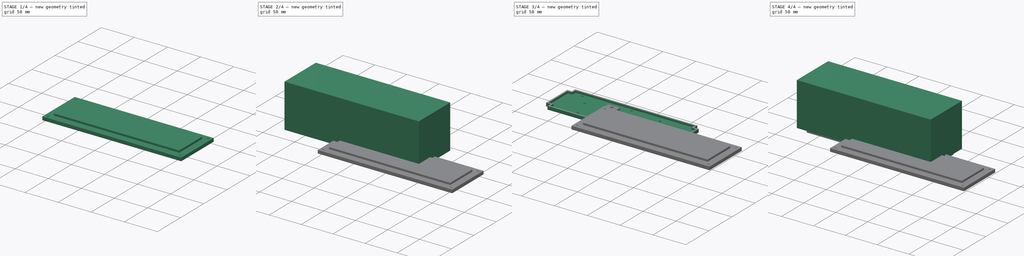
[diagram: build sequence overview — one tinted view per stage of 4, left to right]
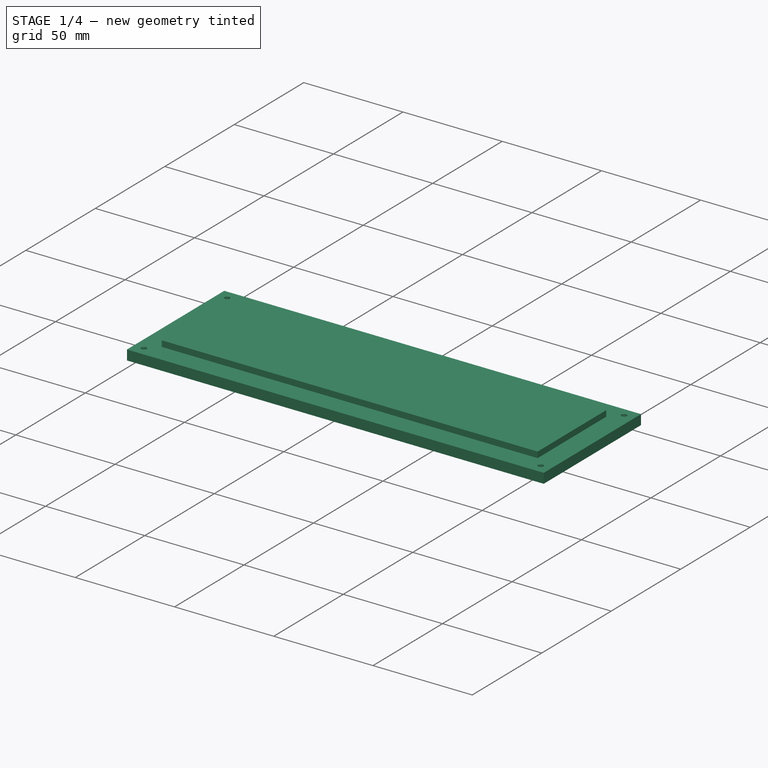
[diagram: stage 1 of 4 — iso view after this stage's code; geometry added in this stage tinted green]
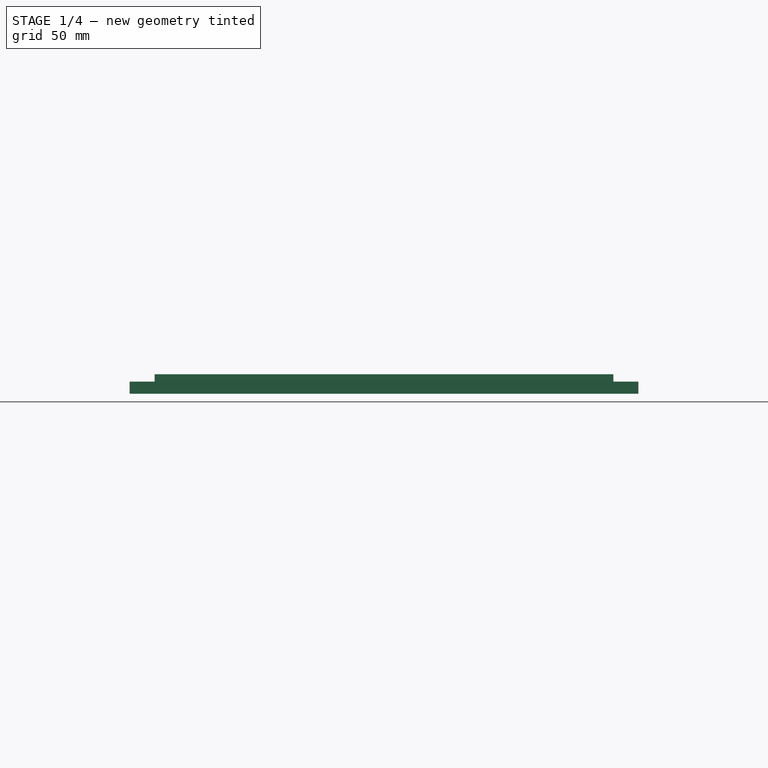
[diagram: stage 1 of 4 — front view after this stage's code; geometry added in this stage tinted green]
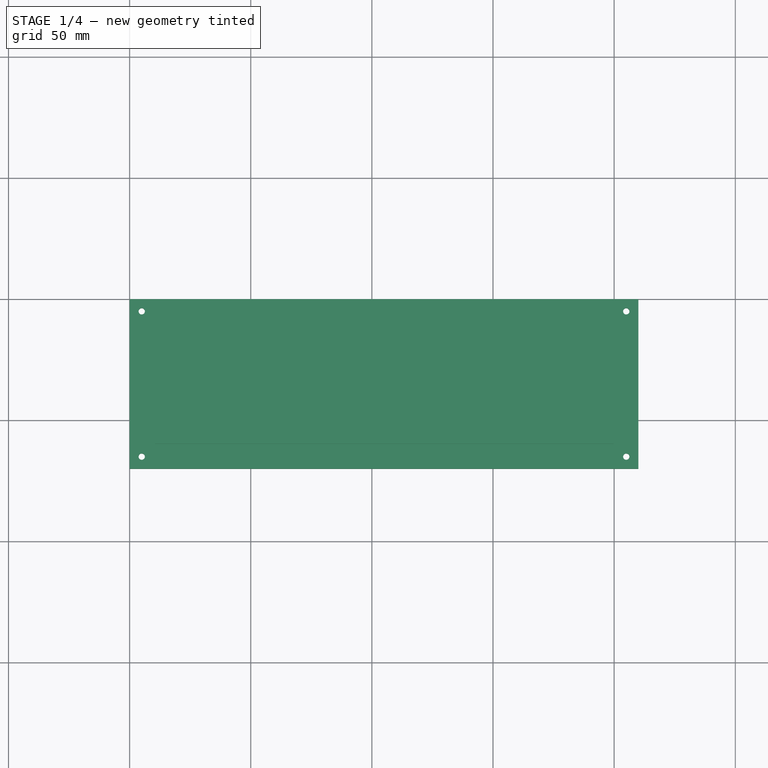
[diagram: stage 1 of 4 — top view after this stage's code; geometry added in this stage tinted green]
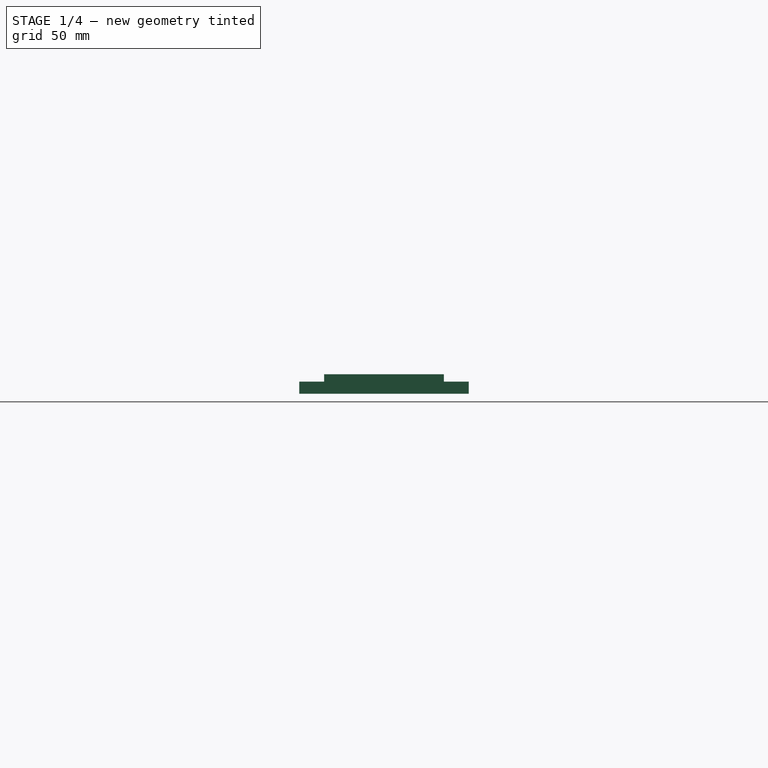
[diagram: stage 1 of 4 — right view after this stage's code; geometry added in this stage tinted green]
FCSTD DOCUMENT  (FreeCAD 0.20R29177 (Git))
Label: ElectronicAssembly_v3
License: All rights reserved
LicenseURL: http://en.wikipedia.org/wiki/All_rights_reserved
objects: Sketcher::SketchObject×12, PartDesign::Pocket×8, PartDesign::Pad×4, PartDesign::Body×4, App::Part×4, Part::Feature×1
note: 41 computed .brp shape members not serialized (recipe doc carries the construction recipe); baked Part::Feature solids carry a one-line shape summary decoded from their .brp

FEATURE [PartDesign::Body] Body003
  Group = -> [Sketch012,Pad003,Sketch013,Pocket005]
  Origin = -> Origin009
  Tip = -> Pocket005
FEATURE [App::Part] Part004  label="MotorControlConnector"
  Group = -> [Body003]
  Origin = -> Origin008
FEATURE [Sketcher::SketchObject] Sketch014
  FullyConstrained = true
  MapMode = 5
  Support = -> [XY_Plane011]
  sketch-geometry (4):
    g0: LineSegment StartX=0 StartY=0 StartZ=0 EndX=210 EndY=0 EndZ=0
    g1: LineSegment StartX=210 StartY=0 StartZ=0 EndX=210 EndY=-70 EndZ=0
    g2: LineSegment StartX=210 StartY=-70 StartZ=0 EndX=0 EndY=-70 EndZ=0
    g3: LineSegment StartX=0 StartY=-70 StartZ=0 EndX=0 EndY=0 EndZ=0
  constraints (11):
    c: Coincident(g0,g1)
    c: Coincident(g1,g2)
    c: Coincident(g2,g3)
    c: Coincident(g3,g0)
    c: Horizontal(g0)
    c: Horizontal(g2)
    c: Vertical(g1)
    c: Vertical(g3)
    c: DistanceX(g0,g0) = 210
    c: DistanceY(g3,g3) = 70
    c: Coincident(g-1,g0)
FEATURE [PartDesign::Pad] Pad004
  Direction = (0,0,1)
  Length = 8
  Length2 = 10
  Profile = -> Sketch014
  ReferenceAxis = -> Sketch014 [N_Axis]
  Type = 0
FEATURE [Sketcher::SketchObject] Sketch015
  ExternalGeometry = -> [Pad004]
  FullyConstrained = true
  MapMode = 5
  Placement = pos=(0,0,8) rot=(0,0,1;0rad)
  Support = -> [Pad004]
  sketch-geometry (8):
    g0: LineSegment StartX=0 StartY=0 StartZ=0 EndX=210 EndY=0 EndZ=0
    g1: LineSegment StartX=210 StartY=0 StartZ=0 EndX=210 EndY=-70 EndZ=0
    g2: LineSegment StartX=210 StartY=-70 StartZ=0 EndX=0 EndY=-70 EndZ=0
    g3: LineSegment StartX=0 StartY=-70 StartZ=0 EndX=0 EndY=0 EndZ=0
    g4: LineSegment StartX=199.7 StartY=-59.7 StartZ=0 EndX=10.3 EndY=-59.7 EndZ=0
    g5: LineSegment StartX=10.3 StartY=-59.7 StartZ=0 EndX=10.3 EndY=-10.3 EndZ=0
    g6: LineSegment StartX=10.3 StartY=-10.3 StartZ=0 EndX=199.7 EndY=-10.3 EndZ=0
    g7: LineSegment StartX=199.7 StartY=-10.3 StartZ=0 EndX=199.7 EndY=-59.7 EndZ=0
  constraints (21):
    c: Coincident(g1,g2)
    c: Coincident(g0,g1)
    c: Vertical(g1)
    c: Horizontal(g0)
    c: Coincident(g0,g3)
    c: Coincident(g3,g2)
    c: DistanceX(g2,g4) = 10.3
    c: Coincident(g5,g4)
    c: Vertical(g5)
    c: Coincident(g6,g5)
    c: DistanceX(g6,g0) = 10.3
    c: Coincident(g7,g6)
    c: Vertical(g7)
    c: Coincident(g4,g7)
    c: DistanceY(g5,g0) = 10.3
    c: Horizontal(g6)
    c: Horizontal(g4)
    c: DistanceY(g2,g4) = 10.3
    c: Coincident(g-3,g1)
    c: Coincident(g2,g-3)
    c: Coincident(g0,g-1)
FEATURE [PartDesign::Pocket] Pocket006
  BaseFeature = -> Pad004
  Direction = (0,0,-1)
  Length = 3
  Length2 = 5
  Profile = -> Sketch015
  ReferenceAxis = -> Sketch015 [N_Axis]
  Type = 0
FEATURE [Sketcher::SketchObject] Sketch016
  ExternalGeometry = -> [Pocket006]
  FullyConstrained = true
  MapMode = 5
  Placement = pos=(0,0,8) rot=(0,0,1;0rad)
  Support = -> [Pocket006]
  sketch-geometry (4):
    g0: Circle CenterX=5 CenterY=-5 CenterZ=0 NormalX=0 NormalY=0 NormalZ=1 AngleXU=0 Radius=1.3
    g1: Circle CenterX=205 CenterY=-5 CenterZ=0 NormalX=0 NormalY=0 NormalZ=1 AngleXU=0 Radius=1.3
    g2: Circle CenterX=205 CenterY=-65 CenterZ=0 NormalX=0 NormalY=0 NormalZ=1 AngleXU=0 Radius=1.3
    g3: Circle CenterX=5 CenterY=-65 CenterZ=0 NormalX=0 NormalY=0 NormalZ=1 AngleXU=0 Radius=1.3
  constraints (12):
    c: Vertical(g0,g3)
    c: Horizontal(g1,g0)
    c: Vertical(g2,g1)
    c: Diameter(g0) = 2.6
    c: DistanceY(g0,g-1) = 5
    c: DistanceY(g-3,g3) = 5
    c: Diameter(g3) = 2.6
    c: Diameter(g2) = 2.6
    c: Diameter(g1) = 2.6
    c: Horizontal(g2,g3)
    c: DistanceX(g-4,g0) = 5
    c: DistanceX(g1,g-5) = 5
FEATURE [PartDesign::Pocket] Pocket007
  BaseFeature = -> Pocket006
  Direction = (0,0,-1)
  Length = 25
  Length2 = 5
  Profile = -> Sketch016
  ReferenceAxis = -> Sketch016 [N_Axis]
  Type = 0
FEATURE [PartDesign::Body] Body004  label="EnclosureBody"
  Group = -> [Sketch014,Pad004,Sketch015,Pocket006,Sketch016,Pocket007]
  Origin = -> Origin011
  Tip = -> Pocket007
FEATURE [App::Part] Part005  label="ElectronicsEnclosureLid"
  Group = -> [Body004]
  Origin = -> Origin010
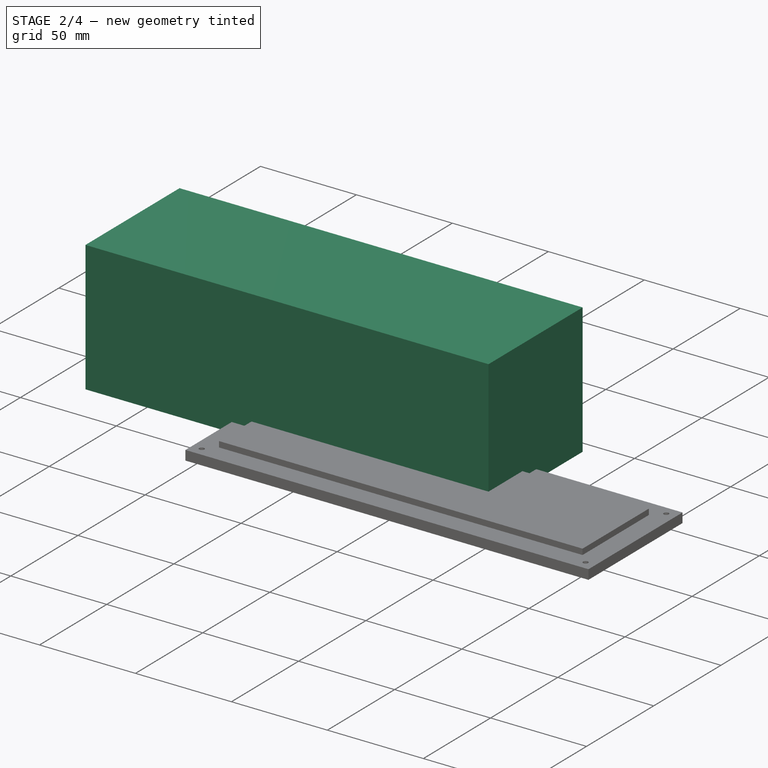
[diagram: stage 2 of 4 — iso view after this stage's code; geometry added in this stage tinted green]
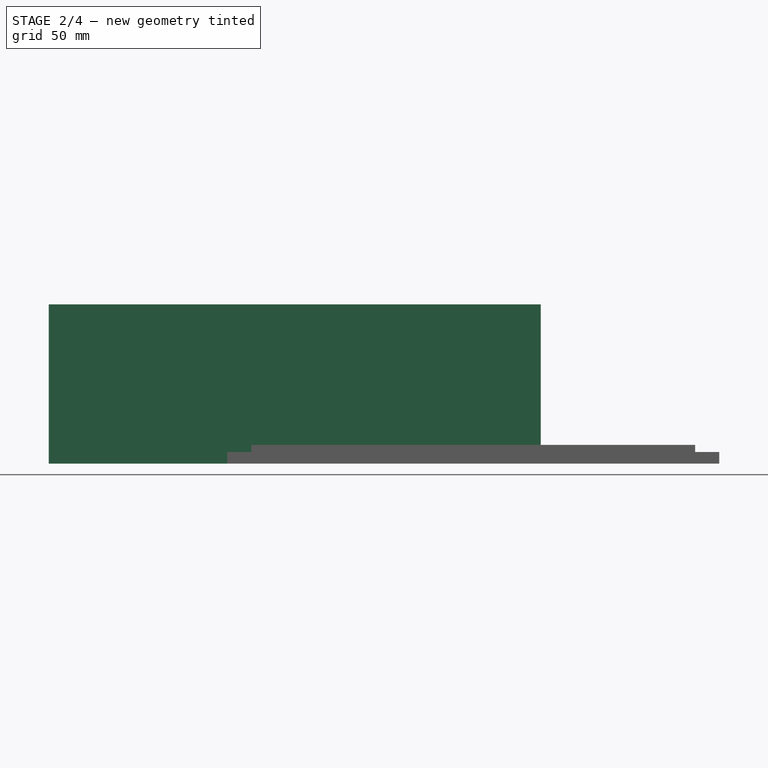
[diagram: stage 2 of 4 — front view after this stage's code; geometry added in this stage tinted green]
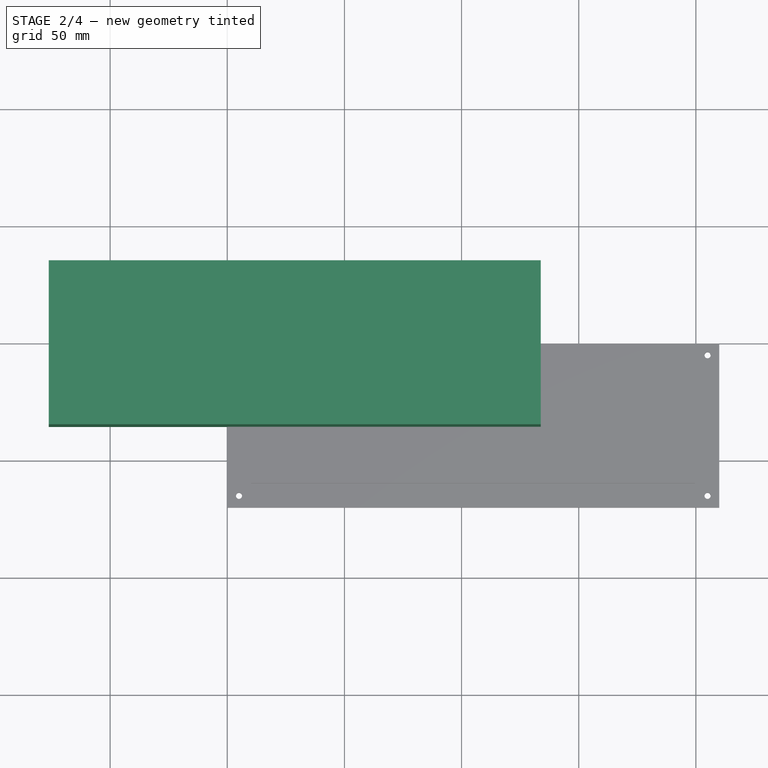
[diagram: stage 2 of 4 — top view after this stage's code; geometry added in this stage tinted green]
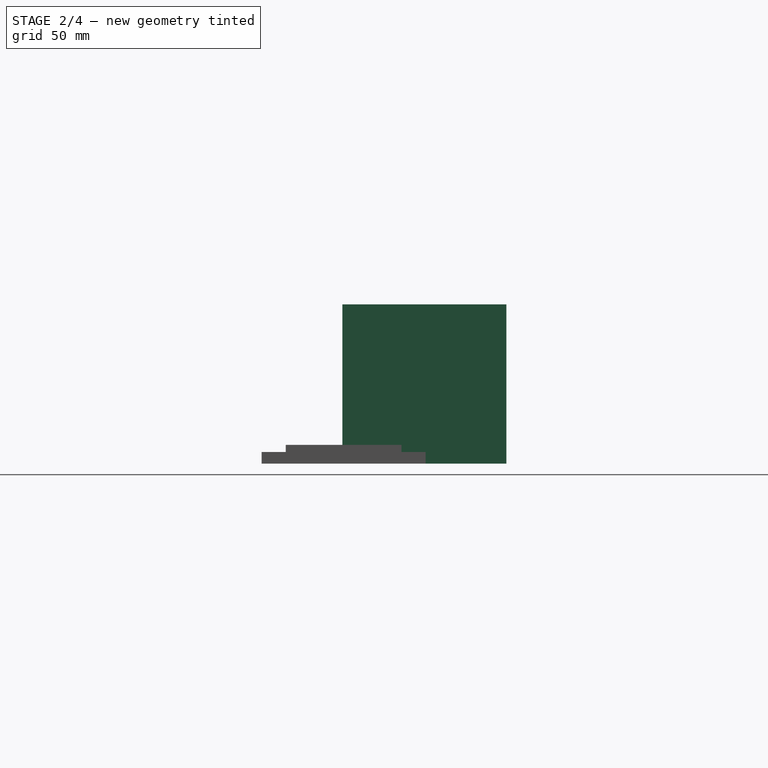
[diagram: stage 2 of 4 — right view after this stage's code; geometry added in this stage tinted green]
FEATURE [Sketcher::SketchObject] Sketch006
  FullyConstrained = false
  MapMode = 5
  Support = -> [XY_Plane006]
  sketch-geometry (4):
    g0: LineSegment StartX=-76.2213 StartY=34.4613 StartZ=0 EndX=133.779 EndY=34.4613 EndZ=0
    g1: LineSegment StartX=133.779 StartY=34.4613 StartZ=0 EndX=133.779 EndY=-35.5387 EndZ=0
    g2: LineSegment StartX=133.779 StartY=-35.5387 StartZ=0 EndX=-76.2213 EndY=-35.5387 EndZ=0
    g3: LineSegment StartX=-76.2213 StartY=-35.5387 StartZ=0 EndX=-76.2213 EndY=34.4613 EndZ=0
  constraints (10):
    c: Coincident(g0,g1)
    c: Coincident(g1,g2)
    c: Coincident(g2,g3)
    c: Coincident(g3,g0)
    c: Horizontal(g0)
    c: Horizontal(g2)
    c: Vertical(g1)
    c: Vertical(g3)
    c: DistanceX(g2,g2) = 210
    c: DistanceY(g1,g1) = 70
FEATURE [PartDesign::Pad] Pad002
  Direction = (0,0,1)
  Length = 68
  Length2 = 100
  Profile = -> Sketch006
  Type = 0
FEATURE [PartDesign::Body] Body  label="MountPadBody"
  Group = -> [Sketch009,Pad,Sketch010,Pocket003,Sketch011,Pocket004]
  Origin = -> Origin007
  Tip = -> Pocket004
FEATURE [App::Part] Part  label="MountPad"
  Group = -> [Body]
  Origin = -> Origin
FEATURE [Sketcher::SketchObject] Sketch012
  FullyConstrained = true
  MapMode = 5
  Support = -> [XY_Plane009]
  sketch-geometry (11):
    g0: LineSegment StartX=0 StartY=0 StartZ=0 EndX=18 EndY=0 EndZ=0
    g1: LineSegment StartX=18 StartY=0 StartZ=0 EndX=18 EndY=10 EndZ=0
    g2: LineSegment StartX=18 StartY=10 StartZ=0 EndX=0 EndY=10 EndZ=0
    g3: LineSegment StartX=0 StartY=10 StartZ=0 EndX=0 EndY=0 EndZ=0
    g4: Circle CenterX=3 CenterY=5 CenterZ=0 NormalX=0 NormalY=0 NormalZ=1 AngleXU=0 Radius=0.75
    g5: Circle CenterX=9 CenterY=5 CenterZ=0 NormalX=0 NormalY=0 NormalZ=1 AngleXU=0 Radius=2.5
    g6: Circle CenterX=15 CenterY=5 CenterZ=0 NormalX=0 NormalY=0 NormalZ=1 AngleXU=0 Radius=0.75
    g7: LineSegment StartX=3 StartY=5 StartZ=0 EndX=3 EndY=10 EndZ=0
    g8: LineSegment StartX=3 StartY=5 StartZ=0 EndX=3 EndY=0 EndZ=0
    g9: LineSegment StartX=0 StartY=5 StartZ=0 EndX=3 EndY=5 EndZ=0
    g10: LineSegment StartX=15 StartY=5 StartZ=0 EndX=18 EndY=5 EndZ=0
  constraints (31):
    c: Coincident(g0,g1)
    c: Coincident(g1,g2)
    c: Coincident(g2,g3)
    c: Coincident(g3,g0)
    c: Horizontal(g0)
    c: Horizontal(g2)
    c: Vertical(g1)
    c: Vertical(g3)
    c: Coincident(g0,g-1)
    c: DistanceX(g2,g2) = 18
    c: DistanceY(g3,g3) = 10
    c: Diameter(g6) = 1.5
    c: Diameter(g4) = 1.5
    c: Coincident(g7,g4)
    c: PointOnObject(g7,g2)
    c: Vertical(g7)
    c: Coincident(g8,g4)
    c: PointOnObject(g8,g0)
    c: Vertical(g8)
    c: Equal(g8,g7)
    c: Horizontal(g4,g5)
    c: Horizontal(g6,g5)
    c: PointOnObject(g9,g3)
    c: Coincident(g9,g4)
    c: Horizontal(g9)
    c: Coincident(g10,g6)
    c: PointOnObject(g10,g1)
    c: Equal(g9,g10)
    c: Symmetric(g9,g10,g5)
    c: Diameter(g5) = 5
    c: DistanceX(g4,g6) = 12
FEATURE [PartDesign::Pad] Pad003
  Direction = (0,0,1)
  Length = 4
  Length2 = 10
  Profile = -> Sketch012
  ReferenceAxis = -> Sketch012 [N_Axis]
  Type = 0
FEATURE [Sketcher::SketchObject] Sketch013
  ExternalGeometry = -> [Pad003]
  FullyConstrained = true
  MapMode = 5
  Placement = pos=(0,0,0) rot=(1,0,0;3.14159rad)
  Support = -> [Pad003]
  sketch-geometry (6):
    g0: LineSegment StartX=5 StartY=0 StartZ=0 EndX=13 EndY=0 EndZ=0
    g1: LineSegment StartX=13 StartY=0 StartZ=0 EndX=13 EndY=-10 EndZ=0
    g2: LineSegment StartX=13 StartY=-10 StartZ=0 EndX=5 EndY=-10 EndZ=0
    g3: LineSegment StartX=5 StartY=-10 StartZ=0 EndX=5 EndY=0 EndZ=0
    g4: LineSegment StartX=0 StartY=0 StartZ=0 EndX=5 EndY=0 EndZ=0
    g5: LineSegment StartX=13 StartY=0 StartZ=0 EndX=18 EndY=0 EndZ=0
  constraints (16):
    c: Coincident(g0,g1)
    c: Coincident(g1,g2)
    c: Coincident(g2,g3)
    c: Coincident(g3,g0)
    c: Horizontal(g0)
    c: Horizontal(g2)
    c: Vertical(g1)
    c: Vertical(g3)
    c: PointOnObject(g0,g-1)
    c: PointOnObject(g1,g-3)
    c: DistanceX(g0,g0) = 8
    c: Coincident(g4,g-1)
    c: Coincident(g4,g0)
    c: Coincident(g5,g0)
    c: Coincident(g-4,g5)
    c: Equal(g4,g5)
FEATURE [PartDesign::Pocket] Pocket005
  BaseFeature = -> Pad003
  Direction = (0,0,1)
  Length = 4
  Length2 = 5
  Midplane = true
  Profile = -> Sketch013
  ReferenceAxis = -> Sketch013 [N_Axis]
  Type = 0
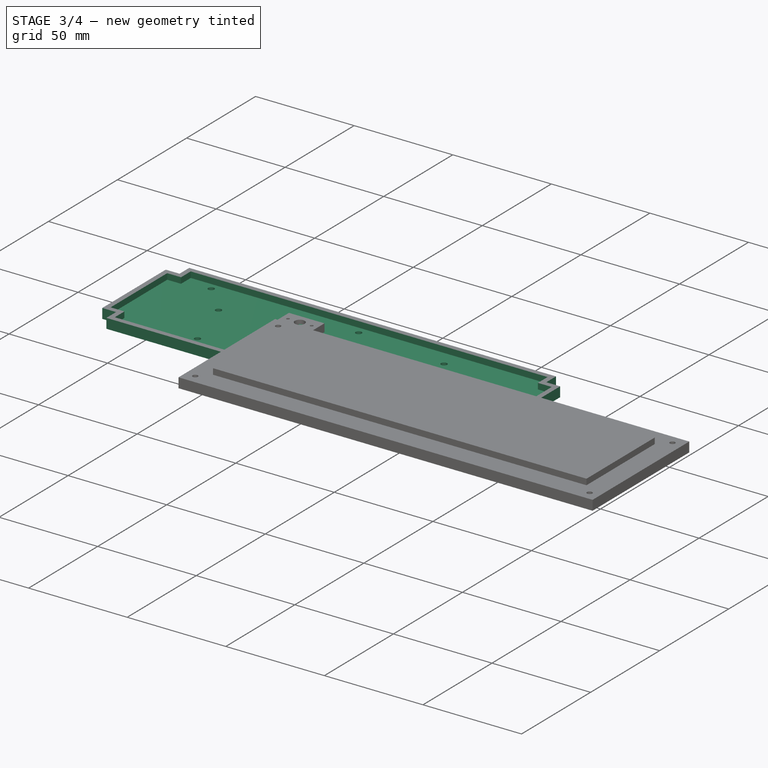
[diagram: stage 3 of 4 — iso view after this stage's code; geometry added in this stage tinted green]
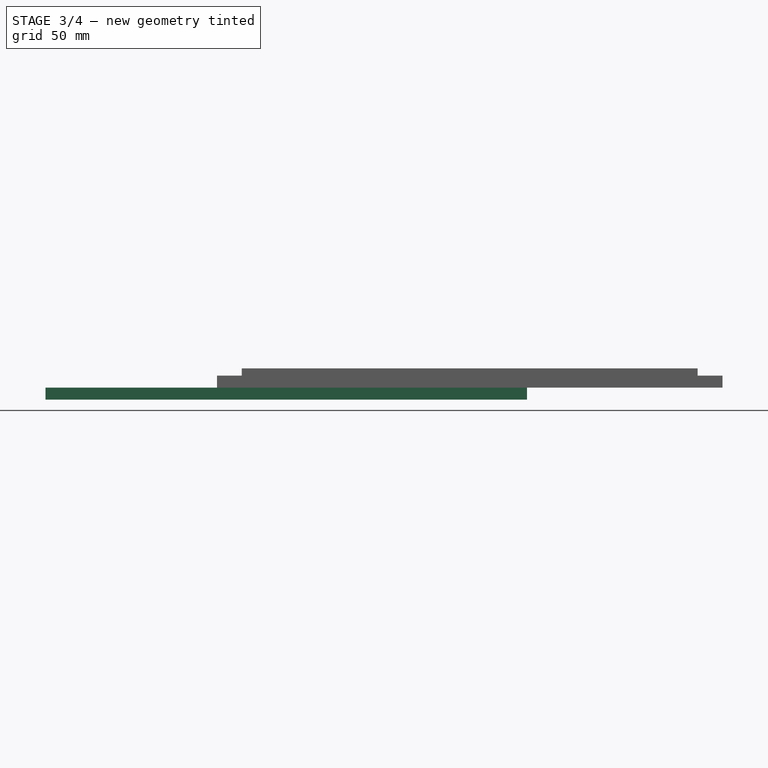
[diagram: stage 3 of 4 — front view after this stage's code; geometry added in this stage tinted green]
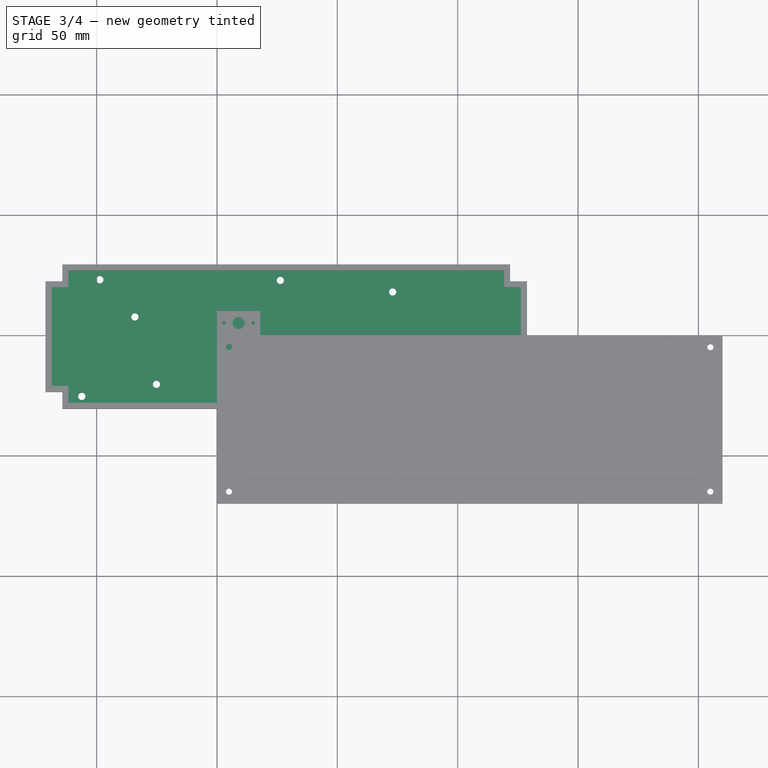
[diagram: stage 3 of 4 — top view after this stage's code; geometry added in this stage tinted green]
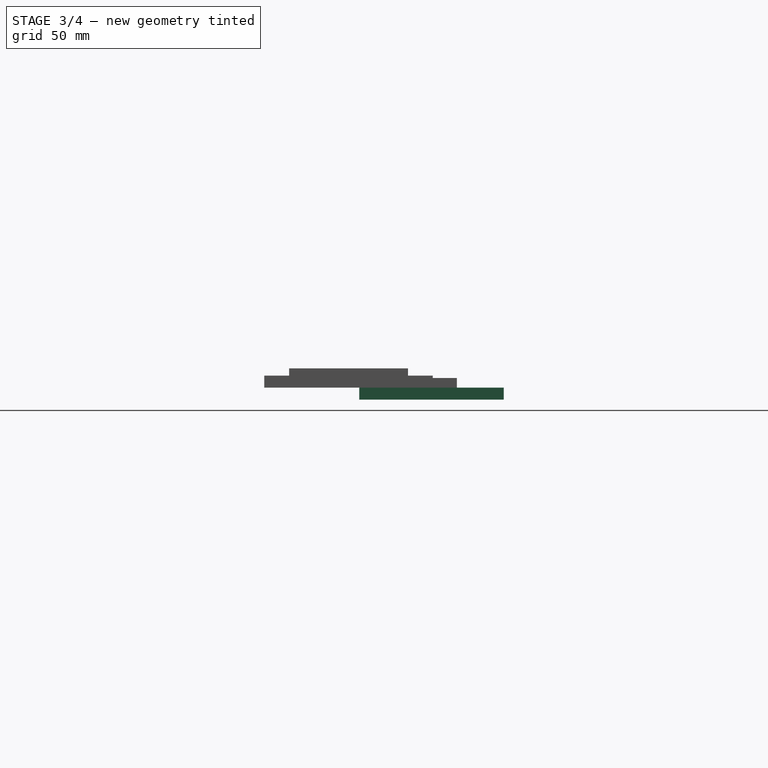
[diagram: stage 3 of 4 — right view after this stage's code; geometry added in this stage tinted green]
FEATURE [PartDesign::Body] Body002
  Group = -> [Sketch006,Pad002,Sketch007,Pocket,Sketch,Pocket001,Sketch008,Pocket002]
  Origin = -> Origin006
  Tip = -> Pocket002
FEATURE [App::Part] Part003  label="ElectronicsEnclosure"
  Group = -> [Body002]
  Origin = -> Origin005
FEATURE [Sketcher::SketchObject] Sketch009
  ExternalGeometry = -> [Pad002]
  FullyConstrained = true
  MapMode = 5
  Placement = pos=(0,0,0) rot=(1,0,0;3.14159rad)
  Support = -> [Pad002,XZ_Plane007]
  sketch-geometry (20):
    g0: LineSegment StartX=-64.2213 StartY=23.5387 StartZ=0 EndX=-71.2213 EndY=23.5387 EndZ=0
    g1: LineSegment StartX=-71.2213 StartY=23.5387 StartZ=0 EndX=-71.2213 EndY=30.5387 EndZ=0
    g2: LineSegment StartX=-71.2213 StartY=30.5387 StartZ=0 EndX=-64.2213 EndY=30.5387 EndZ=0
    g3: LineSegment StartX=-64.2213 StartY=30.5387 StartZ=0 EndX=-64.2213 EndY=23.5387 EndZ=0
    g4: LineSegment StartX=-71.2213 StartY=-22.4613 StartZ=0 EndX=-64.2213 EndY=-22.4613 EndZ=0
    g5: LineSegment StartX=-64.2213 StartY=-22.4613 StartZ=0 EndX=-64.2213 EndY=-29.4613 EndZ=0
    g6: LineSegment StartX=-64.2213 StartY=-29.4613 StartZ=0 EndX=-71.2213 EndY=-29.4613 EndZ=0
    g7: LineSegment StartX=-71.2213 StartY=-29.4613 StartZ=0 EndX=-71.2213 EndY=-22.4613 EndZ=0
    g8: LineSegment StartX=121.779 StartY=-29.4613 StartZ=0 EndX=128.779 EndY=-29.4613 EndZ=0
    g9: LineSegment StartX=128.779 StartY=-29.4613 StartZ=0 EndX=128.779 EndY=-22.4613 EndZ=0
    g10: LineSegment StartX=128.779 StartY=-22.4613 StartZ=0 EndX=121.779 EndY=-22.4613 EndZ=0
    g11: LineSegment StartX=121.779 StartY=-22.4613 StartZ=0 EndX=121.779 EndY=-29.4613 EndZ=0
    g12: LineSegment StartX=121.779 StartY=23.5387 StartZ=0 EndX=128.779 EndY=23.5387 EndZ=0
    g13: LineSegment StartX=128.779 StartY=23.5387 StartZ=0 EndX=128.779 EndY=30.5387 EndZ=0
    g14: LineSegment StartX=128.779 StartY=30.5387 StartZ=0 EndX=121.779 EndY=30.5387 EndZ=0
    g15: LineSegment StartX=121.779 StartY=30.5387 StartZ=0 EndX=121.779 EndY=23.5387 EndZ=0
    g16: LineSegment StartX=-64.2213 StartY=-29.4613 StartZ=0 EndX=121.779 EndY=-29.4613 EndZ=0
    g17: LineSegment StartX=128.779 StartY=-22.4613 StartZ=0 EndX=128.779 EndY=23.5387 EndZ=0
    g18: LineSegment StartX=121.779 StartY=30.5387 StartZ=0 EndX=-64.2213 EndY=30.5387 EndZ=0
    g19: LineSegment StartX=-71.2213 StartY=-22.4613 StartZ=0 EndX=-71.2213 EndY=23.5387 EndZ=0
  constraints (56):
    c: Coincident(g0,g1)
    c: Coincident(g1,g2)
    c: Coincident(g2,g3)
    c: Coincident(g3,g0)
    c: Horizontal(g0)
    c: Horizontal(g2)
    c: Vertical(g1)
    c: Vertical(g3)
    c: Coincident(g4,g5)
    c: Coincident(g5,g6)
    c: Coincident(g6,g7)
    c: Coincident(g7,g4)
    c: Horizontal(g4)
    c: Horizontal(g6)
    c: Vertical(g5)
    c: Vertical(g7)
    c: Coincident(g8,g9)
    c: Coincident(g9,g10)
    c: Coincident(g10,g11)
    c: Coincident(g11,g8)
    c: Horizontal(g8)
    c: Horizontal(g10)
    c: Vertical(g9)
    c: Vertical(g11)
    c: Coincident(g12,g13)
    c: Coincident(g13,g14)
    c: Coincident(g14,g15)
    c: Coincident(g15,g12)
    c: Horizontal(g12)
    c: Horizontal(g14)
    c: Vertical(g13)
    c: Vertical(g15)
    c: Vertical(g12,g10)
    c: Horizontal(g12,g0)
    c: Vertical(g0,g4)
    c: Horizontal(g4,g10)
    c: Coincident(g16,g5)
    c: Coincident(g16,g8)
    c: Horizontal(g16)
    c: Coincident(g17,g9)
    c: Coincident(g17,g12)
    c: Vertical(g17)
    c: Coincident(g18,g14)
    c: Coincident(g18,g2)
    c: Horizontal(g18)
    c: Equal(g2,g1)
    c: Equal(g4,g5)
    c: Coincident(g19,g4)
    c: Coincident(g19,g0)
    c: Vertical(g19)
    c: Equal(g15,g12)
    c: DistanceX(g-3,g1) = 5
    c: DistanceY(g1,g-3) = 5
    c: DistanceX(g13,g-4) = 5
    c: DistanceY(g-4,g8) = 5
    c: DistanceX(g4,g4) = 7
FEATURE [PartDesign::Pad] Pad  label="BasePad"
  Direction = (0,0,-1)
  Length = 5
  Length2 = 100
  Placement = pos=(0,0,0) rot=(1,0,0;3.14159rad)
  Profile = -> Sketch009
  Type = 0
FEATURE [Sketcher::SketchObject] Sketch010
  ExternalGeometry = -> [Pad,Sketch009]
  FullyConstrained = true
  MapMode = 5
  Support = -> [Pad]
  sketch-geometry (12):
    g0: LineSegment StartX=-61.7213 StartY=-28.0387 StartZ=0 EndX=-61.7213 EndY=-21.0387 EndZ=0
    g1: LineSegment StartX=-61.7213 StartY=-21.0387 StartZ=0 EndX=-68.7213 EndY=-21.0387 EndZ=0
    g2: LineSegment StartX=-68.7213 StartY=-21.0387 StartZ=0 EndX=-68.7213 EndY=19.9613 EndZ=0
    g3: LineSegment StartX=-68.7213 StartY=19.9613 StartZ=0 EndX=-61.7213 EndY=19.9613 EndZ=0
    g4: LineSegment StartX=-61.7213 StartY=19.9613 StartZ=0 EndX=-61.7213 EndY=26.9613 EndZ=0
    g5: LineSegment StartX=-61.7213 StartY=26.9613 StartZ=0 EndX=119.279 EndY=26.9613 EndZ=0
    g6: LineSegment StartX=119.279 StartY=26.9613 StartZ=0 EndX=119.279 EndY=19.9613 EndZ=0
    g7: LineSegment StartX=119.279 StartY=19.9613 StartZ=0 EndX=126.279 EndY=19.9613 EndZ=0
    g8: LineSegment StartX=126.279 StartY=19.9613 StartZ=0 EndX=126.279 EndY=-21.0387 EndZ=0
    g9: LineSegment StartX=126.279 StartY=-21.0387 StartZ=0 EndX=119.279 EndY=-21.0387 EndZ=0
    g10: LineSegment StartX=119.279 StartY=-21.0387 StartZ=0 EndX=119.279 EndY=-28.0387 EndZ=0
    g11: LineSegment StartX=119.279 StartY=-28.0387 StartZ=0 EndX=-61.7213 EndY=-28.0387 EndZ=0
  constraints (36):
    c: Vertical(g0)
    c: Coincident(g1,g0)
    c: Horizontal(g1)
    c: Coincident(g3,g2)
    c: Horizontal(g3)
    c: Vertical(g4)
    c: Horizontal(g5)
    c: Coincident(g6,g5)
    c: Vertical(g6)
    c: Coincident(g7,g6)
    c: Vertical(g8)
    c: Horizontal(g9)
    c: Vertical(g10)
    c: Coincident(g11,g10)
    c: Coincident(g11,g0)
    c: Horizontal(g11)
    c: Coincident(g10,g9)
    c: Coincident(g1,g2)
    c: Vertical(g2)
    c: Coincident(g4,g3)
    c: Coincident(g5,g4)
    c: DistanceX(g5,g-4) = 2.5
    c: DistanceY(g6,g-7) = 2.5
    c: Horizontal(g7)
    c: DistanceX(g8,g-8) = 2.5
    c: Coincident(g7,g8)
    c: Coincident(g8,g9)
    c: DistanceX(g-10,g2) = 2.5
    c: DistanceX(g-5,g4) = 2.5
    c: DistanceY(g3,g-10) = 2.5
    c: DistanceX(g10,g-14) = 2.5
    c: DistanceY(g-3,g9) = 2.5
    c: DistanceY(g-14,g10) = 2.5
    c: DistanceX(g-12,g0) = 2.5
    c: DistanceY(g-11,g1) = 2.5
    c: DistanceY(g4,g-5) = 2.5
FEATURE [PartDesign::Pocket] Pocket003
  BaseFeature = -> Pad
  Direction = (0,1e-16,-1)
  Length = 3
  Length2 = 100
  Placement = pos=(0,0,0) rot=(1,0,0;3.14159rad)
  Profile = -> Sketch010
  Type = 0
FEATURE [Part::Feature] Solid001  label="ArduinoMega_STEP_AP204"
  Placement = pos=(-10,-1,-7) rot=(0,0,1;0rad)
  shape: bbox 108 x 53.42 x 12.95 mm, 1851 faces (baked)
FEATURE [Sketcher::SketchObject] Sketch011
  FullyConstrained = false
  MapMode = 5
  Placement = pos=(0,1.1e-15,-3) rot=(0,0,1;0rad)
  Support = -> [Pocket003]
  sketch-geometry (22):
    g0: Circle CenterX=-48.6577 CenterY=23.1692 CenterZ=0 NormalX=0 NormalY=0 NormalZ=1 AngleXU=0 Radius=1.5
    g1: Circle CenterX=-34.1147 CenterY=7.66922 CenterZ=0 NormalX=0 NormalY=0 NormalZ=1 AngleXU=0 Radius=1.5
    g2: Circle CenterX=26.3423 CenterY=22.8681 CenterZ=0 NormalX=0 NormalY=0 NormalZ=1 AngleXU=0 Radius=1.5
    g3: Circle CenterX=-25.1577 CenterY=-20.3308 CenterZ=0 NormalX=0 NormalY=0 NormalZ=1 AngleXU=0 Radius=1.5
    g4: Circle CenterX=-56.1577 CenterY=-25.3308 CenterZ=0 NormalX=0 NormalY=0 NormalZ=1 AngleXU=0 Radius=1.5
    g5: Circle CenterX=26.3423 CenterY=-25.6319 CenterZ=0 NormalX=0 NormalY=0 NormalZ=1 AngleXU=0 Radius=1.5
    g6: Circle CenterX=52.5 CenterY=-11.6319 CenterZ=0 NormalX=0 NormalY=0 NormalZ=1 AngleXU=0 Radius=1.5
    g7: Circle CenterX=52.5 CenterY=-16.6319 CenterZ=0 NormalX=0 NormalY=0 NormalZ=1 AngleXU=0 Radius=1.5
    g8: LineSegment StartX=40 StartY=-1.63194 StartZ=0 EndX=65 EndY=-1.63194 EndZ=0
    g9: LineSegment StartX=65 StartY=-1.63194 StartZ=0 EndX=65 EndY=-26.6319 EndZ=0
    g10: LineSegment StartX=65 StartY=-26.6319 StartZ=0 EndX=40 EndY=-26.6319 EndZ=0
    g11: LineSegment StartX=40 StartY=-26.6319 StartZ=0 EndX=40 EndY=-1.63194 EndZ=0
    g12: LineSegment StartX=52.5 StartY=-11.6319 StartZ=0 EndX=52.5 EndY=-1.63194 EndZ=0
    g13: LineSegment StartX=52.5 StartY=-16.6319 StartZ=0 EndX=52.5 EndY=-26.6319 EndZ=0
    g14: LineSegment StartX=52.5 StartY=-11.6319 StartZ=0 EndX=40 EndY=-11.6319 EndZ=0
    g15: LineSegment StartX=52.5 StartY=-11.6319 StartZ=0 EndX=65 EndY=-11.6319 EndZ=0
    g16: LineSegment StartX=70 StartY=-23.9403 StartZ=0 EndX=115 EndY=-23.9403 EndZ=0
    g17: LineSegment StartX=115 StartY=-23.9403 StartZ=0 EndX=115 EndY=21.0597 EndZ=0
    g18: LineSegment StartX=115 StartY=21.0597 StartZ=0 EndX=70 EndY=21.0597 EndZ=0
    g19: LineSegment StartX=70 StartY=21.0597 StartZ=0 EndX=70 EndY=-23.9403 EndZ=0
    g20: Circle CenterX=73 CenterY=18.0597 CenterZ=0 NormalX=0 NormalY=0 NormalZ=1 AngleXU=0 Radius=1.5
    g21: Circle CenterX=73 CenterY=-20.9403 CenterZ=0 NormalX=0 NormalY=0 NormalZ=1 AngleXU=0 Radius=1.5
  constraints (61):
    c: Diameter(g0) = 3
    c: Diameter(g1) = 3
    c: Diameter(g2) = 3
    c: Diameter(g3) = 3
    c: Diameter(g4) = 3
    c: Diameter(g5) = 3
    c: DistanceX(g4,g3) = 31
    c: DistanceY(g3,g1) = 28
    c: DistanceY(g1,g0) = 15.5
    c: DistanceX(g0,g2) = 75
    c: DistanceY(g5,g2) = 48.5
    c: DistanceX(g3,g5) = 51.5
    c: Diameter(g7) = 3
    c: Diameter(g6) = 3
    c: DistanceY(g7,g6) = 5
    c: Vertical(g6,g7)
    c: Coincident(g8,g9)
    c: Coincident(g9,g10)
    c: Coincident(g10,g11)
    c: Coincident(g11,g8)
    c: Horizontal(g8)
    c: Horizontal(g10)
    c: Vertical(g9)
    c: Vertical(g11)
    c: Equal(g11,g10)
    c: DistanceX(g8,g8) = 25
    c: Coincident(g12,g6)
    c: PointOnObject(g12,g8)
    c: Vertical(g12)
    c: Coincident(g13,g7)
    c: PointOnObject(g13,g10)
    c: Vertical(g13)
    c: Coincident(g14,g6)
    c: PointOnObject(g14,g11)
    c: Horizontal(g14)
    c: Horizontal(g15)
    c: Equal(g14,g15)
    c: Equal(g12,g13)
    c: Coincident(g15,g6)
    c: PointOnObject(g15,g9)
    c: Coincident(g16,g17)
    c: Coincident(g17,g18)
    c: Coincident(g18,g19)
    c: Coincident(g19,g16)
    c: Horizontal(g16)
    c: Horizontal(g18)
    c: Vertical(g17)
    c: Vertical(g19)
    c: Equal(g18,g17)
    c: DistanceX(g18,g18) = 45
    c: DistanceX(g9,g16) = 5
    c: DistanceX(g16,g21) = 3
    c: DistanceY(g16,g21) = 3
    c: Diameter(g21) = 3
    c: DistanceX(g18,g20) = 3
    c: DistanceY(g20,g18) = 3
    c: Diameter(g20) = 3
    c: DistanceY(g4,g0) = 48.5
    c: DistanceX(g10) = 40
    c: DistanceY(g5,g14) = 14
    c: DistanceX(g4,g0) = 7.5
FEATURE [PartDesign::Pocket] Pocket004
  BaseFeature = -> Pocket003
  Direction = (0,4e-16,-1)
  Length = 10
  Length2 = 100
  Placement = pos=(0,0,0) rot=(1,0,0;3.14159rad)
  Profile = -> Sketch011
  Type = 0
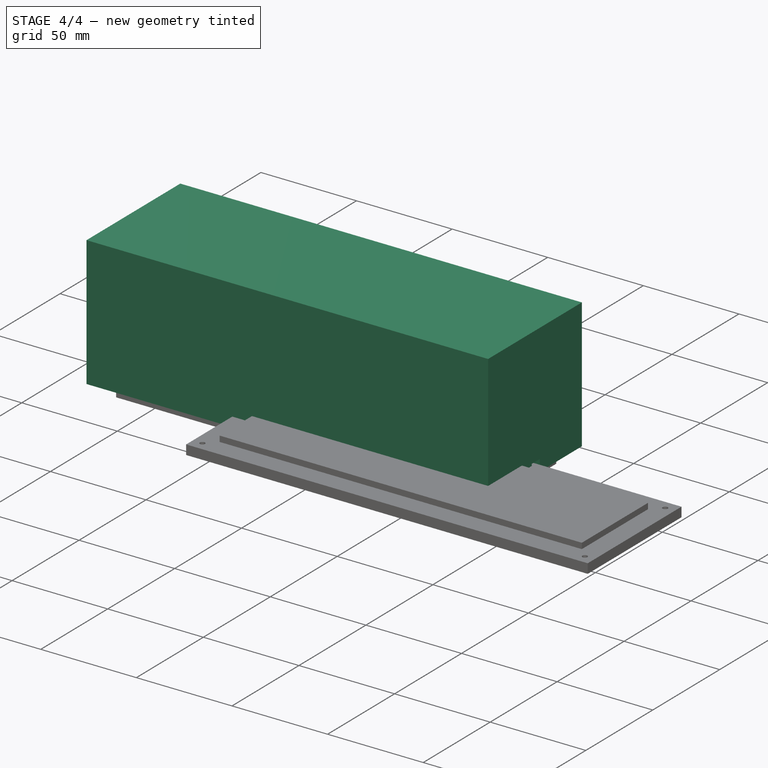
[diagram: stage 4 of 4 — iso view after this stage's code; geometry added in this stage tinted green]
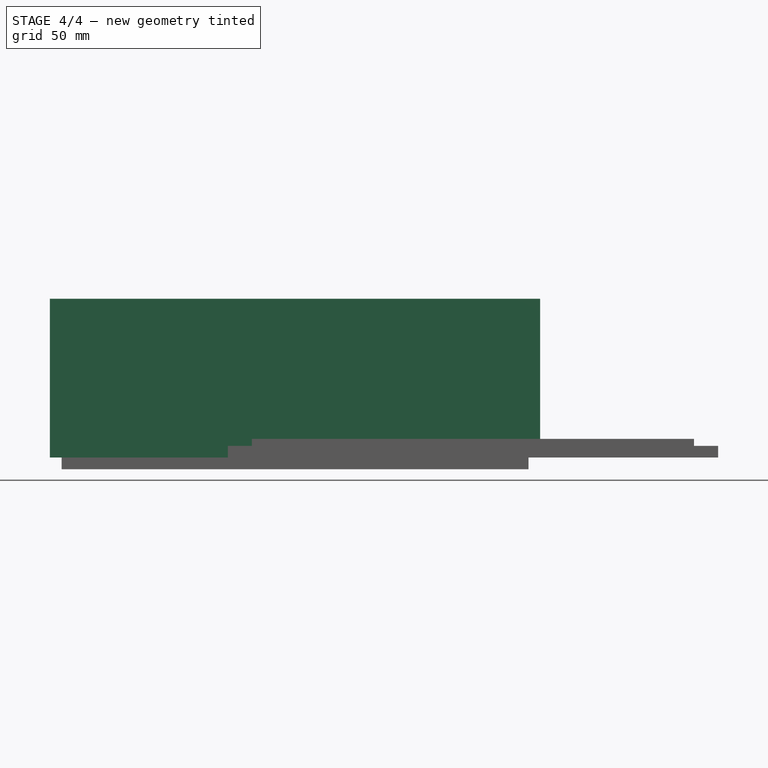
[diagram: stage 4 of 4 — front view after this stage's code; geometry added in this stage tinted green]
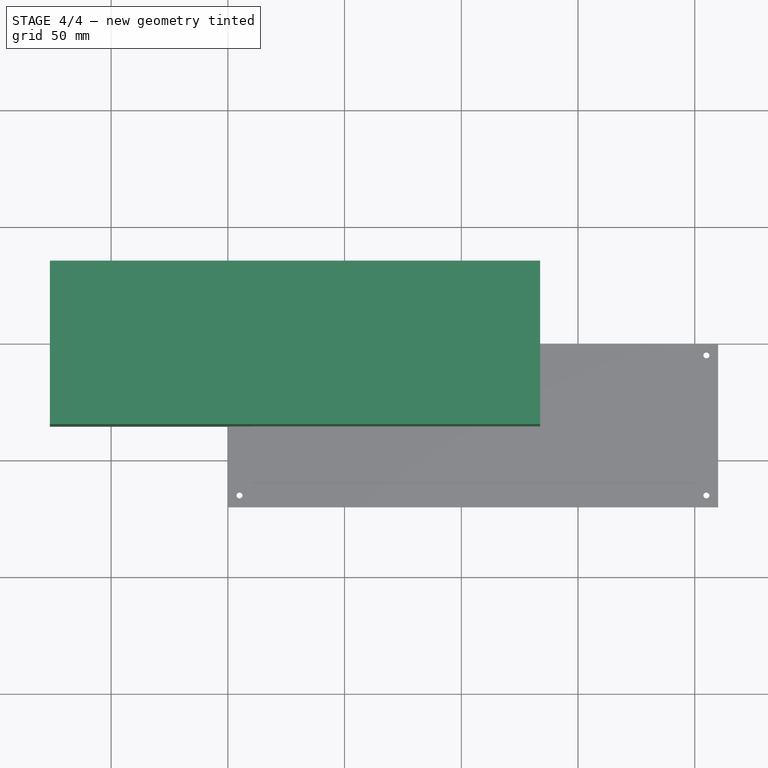
[diagram: stage 4 of 4 — top view after this stage's code; geometry added in this stage tinted green]
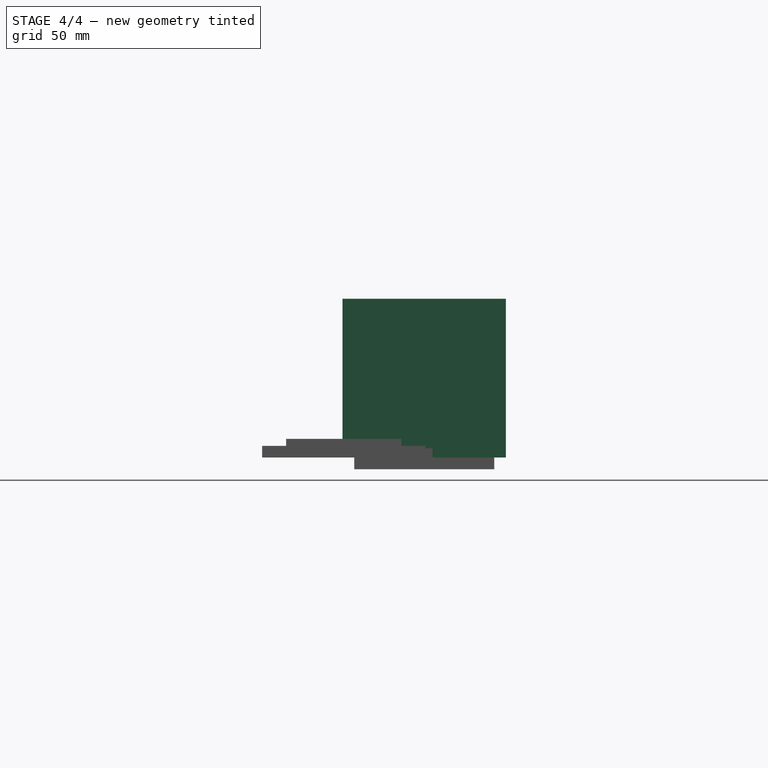
[diagram: stage 4 of 4 — right view after this stage's code; geometry added in this stage tinted green]
FEATURE [Sketcher::SketchObject] Sketch007
  ExternalGeometry = -> [Pad002]
  FullyConstrained = true
  MapMode = 5
  Placement = pos=(0,0,0) rot=(1,0,0;3.14159rad)
  Support = -> [Pad002]
  sketch-geometry (20):
    g0: LineSegment StartX=-72.2213 StartY=31.5387 StartZ=0 EndX=-66.2213 EndY=31.5387 EndZ=0
    g1: LineSegment StartX=-66.2213 StartY=31.5387 StartZ=0 EndX=-66.2213 EndY=25.5387 EndZ=0
    g2: LineSegment StartX=-66.2213 StartY=25.5387 StartZ=0 EndX=-72.2213 EndY=25.5387 EndZ=0
    g3: LineSegment StartX=-72.2213 StartY=25.5387 StartZ=0 EndX=-72.2213 EndY=31.5387 EndZ=0
    g4: LineSegment StartX=-72.2213 StartY=-24.4613 StartZ=0 EndX=-66.2213 EndY=-24.4613 EndZ=0
    g5: LineSegment StartX=-66.2213 StartY=-24.4613 StartZ=0 EndX=-66.2213 EndY=-30.4613 EndZ=0
    g6: LineSegment StartX=-66.2213 StartY=-30.4613 StartZ=0 EndX=-72.2213 EndY=-30.4613 EndZ=0
    g7: LineSegment StartX=-72.2213 StartY=-30.4613 StartZ=0 EndX=-72.2213 EndY=-24.4613 EndZ=0
    g8: LineSegment StartX=129.779 StartY=25.5387 StartZ=0 EndX=123.779 EndY=25.5387 EndZ=0
    g9: LineSegment StartX=123.779 StartY=25.5387 StartZ=0 EndX=123.779 EndY=31.5387 EndZ=0
    g10: LineSegment StartX=123.779 StartY=31.5387 StartZ=0 EndX=129.779 EndY=31.5387 EndZ=0
    g11: LineSegment StartX=129.779 StartY=31.5387 StartZ=0 EndX=129.779 EndY=25.5387 EndZ=0
    g12: LineSegment StartX=-72.2213 StartY=25.5387 StartZ=0 EndX=-72.2213 EndY=-24.4613 EndZ=0
    g13: LineSegment StartX=-66.2213 StartY=31.5387 StartZ=0 EndX=123.779 EndY=31.5387 EndZ=0
    g14: LineSegment StartX=129.779 StartY=25.5387 StartZ=0 EndX=129.779 EndY=-24.4613 EndZ=0
    g15: LineSegment StartX=129.779 StartY=-24.4613 StartZ=0 EndX=123.779 EndY=-24.4613 EndZ=0
    g16: LineSegment StartX=123.779 StartY=-24.4613 StartZ=0 EndX=123.779 EndY=-30.4613 EndZ=0
    g17: LineSegment StartX=123.779 StartY=-30.4613 StartZ=0 EndX=129.779 EndY=-30.4613 EndZ=0
    g18: LineSegment StartX=129.779 StartY=-30.4613 StartZ=0 EndX=129.779 EndY=-24.4613 EndZ=0
    g19: LineSegment StartX=-66.2213 StartY=-30.4613 StartZ=0 EndX=123.779 EndY=-30.4613 EndZ=0
  constraints (56):
    c: Coincident(g0,g1)
    c: Coincident(g1,g2)
    c: Coincident(g2,g3)
    c: Coincident(g3,g0)
    c: Horizontal(g0)
    c: Horizontal(g2)
    c: Vertical(g1)
    c: Vertical(g3)
    c: Coincident(g4,g5)
    c: Coincident(g5,g6)
    c: Coincident(g6,g7)
    c: Coincident(g7,g4)
    c: Horizontal(g4)
    c: Horizontal(g6)
    c: Vertical(g5)
    c: Vertical(g7)
    c: Coincident(g8,g9)
    c: Coincident(g9,g10)
    c: Coincident(g10,g11)
    c: Coincident(g11,g8)
    c: Horizontal(g8)
    c: Vertical(g9)
    c: Vertical(g11)
    c: Equal(g9,g1)
    c: Equal(g5,g6)
    c: Equal(g2,g3)
    c: DistanceX(g2,g2) = 6
    c: DistanceX(g-6,g0) = 4
    c: DistanceY(g0,g-6) = 4
    c: Coincident(g12,g2)
    c: Coincident(g12,g4)
    c: DistanceY(g-6,g6) = 4
    c: Coincident(g13,g1)
    c: Coincident(g13,g9)
    c: Horizontal(g13)
    c: Coincident(g14,g8)
    c: Vertical(g14)
    c: Coincident(g15,g16)
    c: Coincident(g16,g17)
    c: Coincident(g17,g18)
    c: Coincident(g18,g15)
    c: Horizontal(g15)
    c: Horizontal(g17)
    c: Vertical(g16)
    c: Vertical(g18)
    c: Coincident(g15,g14)
    c: Coincident(g19,g5)
    c: Coincident(g19,g16)
    c: Horizontal(g19)
    c: Vertical(g15,g8)
    c: DistanceX(g8,g8) = 6
    c: DistanceX(g17,g-5) = 4
    c: Horizontal(g10)
    c: Equal(g15,g18)
    c: Vertical(g12)
    c: Vertical(g4,g1)
FEATURE [PartDesign::Pocket] Pocket
  BaseFeature = -> Pad002
  Direction = (0,0,1)
  Length = 65
  Length2 = 100
  Profile = -> Sketch007
  Type = 0
FEATURE [Sketcher::SketchObject] Sketch
  FullyConstrained = true
  MapMode = 5
  Placement = pos=(-76.2213,0,0) rot=(0.57735,-0.57735,-0.57735;2.0944rad)
  Support = -> [Pad002]
  sketch-geometry (10):
    g0: LineSegment StartX=-17 StartY=35 StartZ=0 EndX=-10 EndY=35 EndZ=0
    g1: LineSegment StartX=-10 StartY=35 StartZ=0 EndX=-10 EndY=30 EndZ=0
    g2: LineSegment StartX=-10 StartY=30 StartZ=0 EndX=-17 EndY=30 EndZ=0
    g3: LineSegment StartX=-17 StartY=30 StartZ=0 EndX=-17 EndY=35 EndZ=0
    g4: LineSegment StartX=10 StartY=35 StartZ=0 EndX=17 EndY=35 EndZ=0
    g5: LineSegment StartX=17 StartY=35 StartZ=0 EndX=17 EndY=30 EndZ=0
    g6: LineSegment StartX=17 StartY=30 StartZ=0 EndX=10 EndY=30 EndZ=0
    g7: LineSegment StartX=10 StartY=30 StartZ=0 EndX=10 EndY=35 EndZ=0
    g8: LineSegment StartX=0 StartY=30 StartZ=0 EndX=-10 EndY=30 EndZ=0
    g9: LineSegment StartX=0 StartY=30 StartZ=0 EndX=10 EndY=30 EndZ=0
  constraints (29):
    c: Coincident(g0,g1)
    c: Coincident(g1,g2)
    c: Coincident(g2,g3)
    c: Coincident(g3,g0)
    c: Horizontal(g0)
    c: Horizontal(g2)
    c: Vertical(g1)
    c: Vertical(g3)
    c: Coincident(g4,g5)
    c: Coincident(g5,g6)
    c: Coincident(g6,g7)
    c: Coincident(g7,g4)
    c: Horizontal(g4)
    c: Horizontal(g6)
    c: Vertical(g5)
    c: Vertical(g7)
    c: DistanceX(g0,g0) = 7
    c: DistanceX(g4,g4) = 7
    c: DistanceY(g5,g5) = 5
    c: Horizontal(g0,g4)
    c: Horizontal(g1,g6)
    c: PointOnObject(g8,g-2)
    c: Coincident(g8,g1)
    c: Coincident(g9,g8)
    c: Coincident(g9,g6)
    c: Equal(g9,g8)
    c: Horizontal(g9)
    c: DistanceX(g8,g8) = 10
    c: DistanceY(g-1,g8) = 30
FEATURE [PartDesign::Pocket] Pocket001
  BaseFeature = -> Pocket
  Direction = (1,0,0)
  Length = 20
  Length2 = 100
  Profile = -> Sketch
  Type = 0
FEATURE [Sketcher::SketchObject] Sketch008
  FullyConstrained = true
  MapMode = 5
  Placement = pos=(133.779,0,0) rot=(0.57735,0.57735,0.57735;2.0944rad)
  Support = -> [Pad002]
  sketch-geometry (6):
    g0: LineSegment StartX=-3 StartY=6 StartZ=0 EndX=3 EndY=6 EndZ=0
    g1: LineSegment StartX=3 StartY=6 StartZ=0 EndX=3 EndY=0 EndZ=0
    g2: LineSegment StartX=3 StartY=0 StartZ=0 EndX=-3 EndY=0 EndZ=0
    g3: LineSegment StartX=-3 StartY=0 StartZ=0 EndX=-3 EndY=6 EndZ=0
    g4: LineSegment StartX=0 StartY=0 StartZ=0 EndX=-3 EndY=0 EndZ=0
    g5: LineSegment StartX=0 StartY=0 StartZ=0 EndX=3 EndY=0 EndZ=0
  constraints (17):
    c: Coincident(g0,g1)
    c: Coincident(g1,g2)
    c: Coincident(g2,g3)
    c: Coincident(g3,g0)
    c: Horizontal(g0)
    c: Horizontal(g2)
    c: Vertical(g1)
    c: Vertical(g3)
    c: DistanceY(g3,g3) = 6
    c: DistanceX(g0,g0) = 6
    c: Coincident(g4,g-1)
    c: PointOnObject(g4,g-1)
    c: Coincident(g5,g4)
    c: PointOnObject(g5,g-1)
    c: Equal(g4,g5)
    c: Vertical(g5,g1)
    c: Coincident(g2,g4)
FEATURE [PartDesign::Pocket] Pocket002
  BaseFeature = -> Pocket001
  Direction = (-1,0,0)
  Length = 10
  Length2 = 100
  Profile = -> Sketch008
  Type = 0
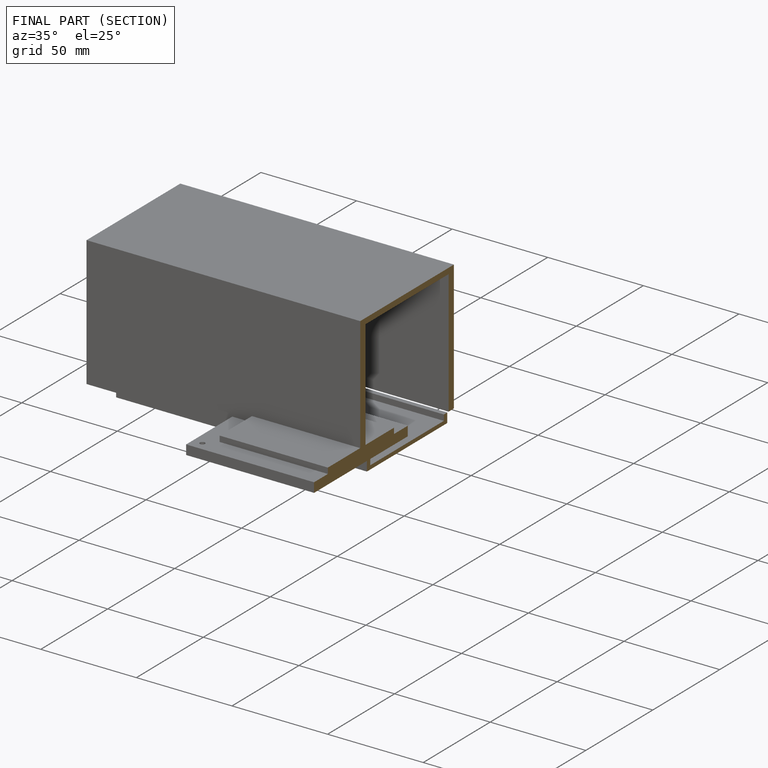
[diagram: finished part — half-section view (interior)]
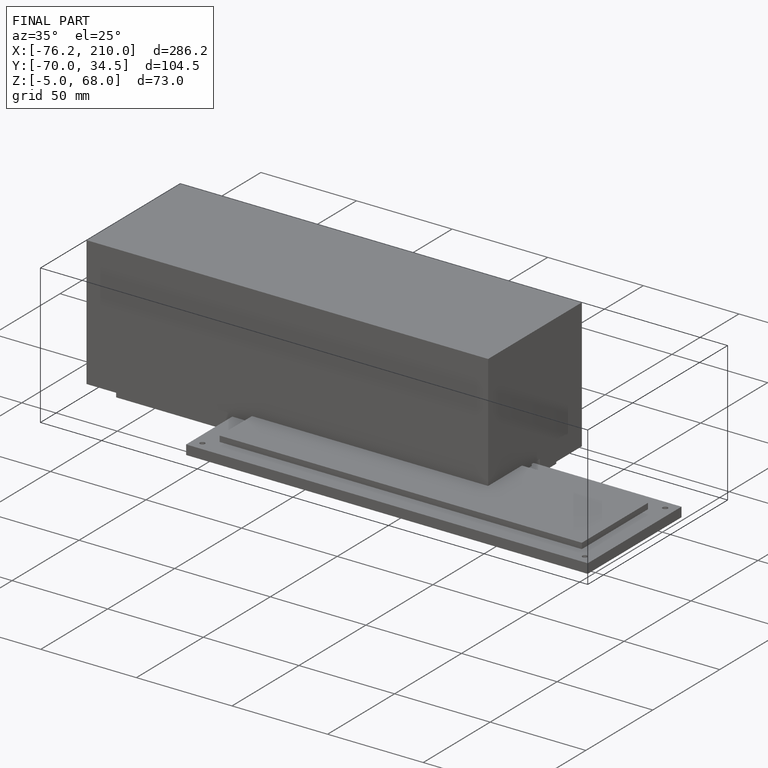
[diagram: finished part — iso view with bounding-box wireframe]
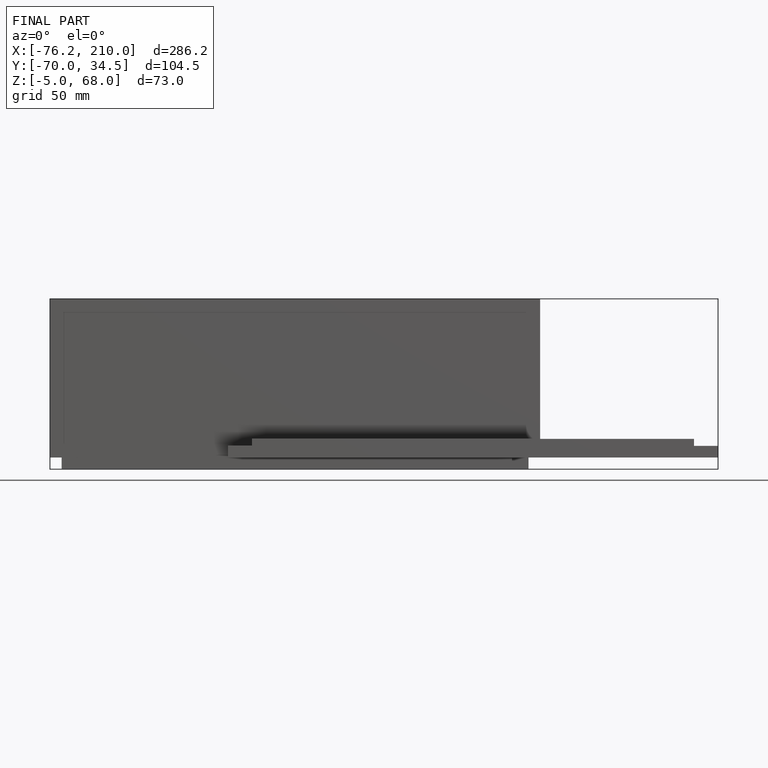
[diagram: finished part — front view with bounding-box wireframe]
